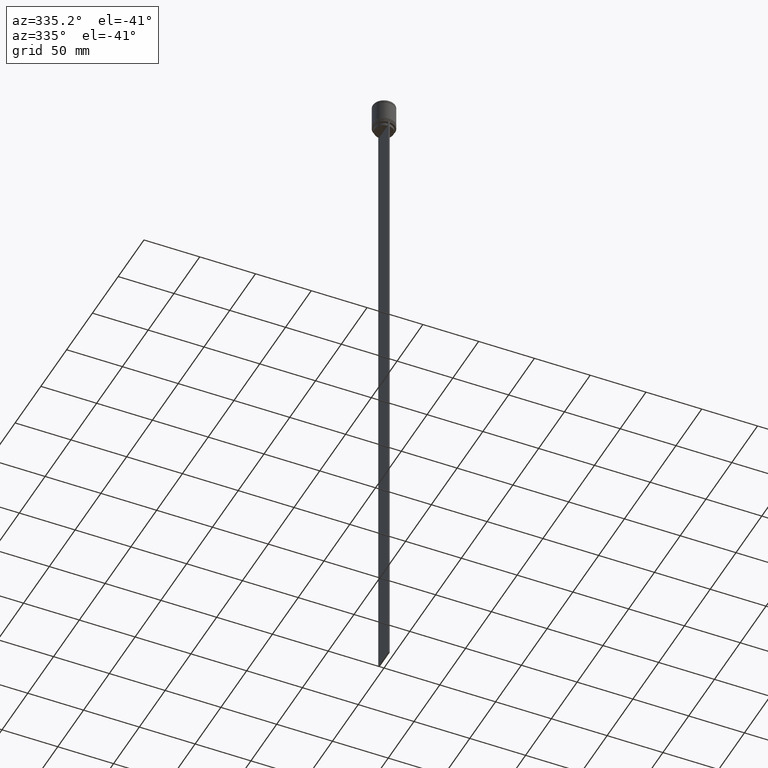
[diagram: clean part render]
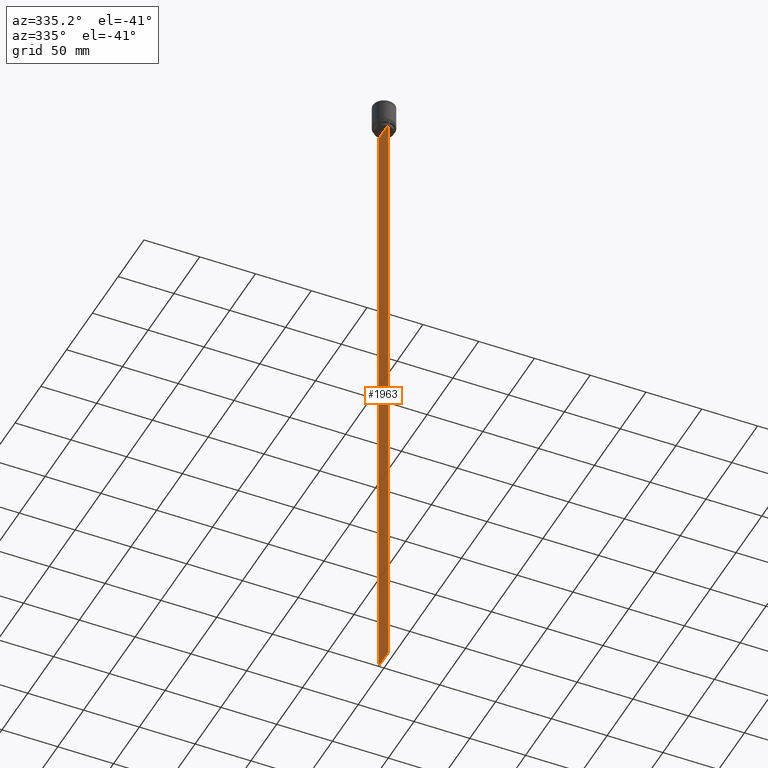
[diagram: same view with one face highlighted and labeled with its STEP entity id]
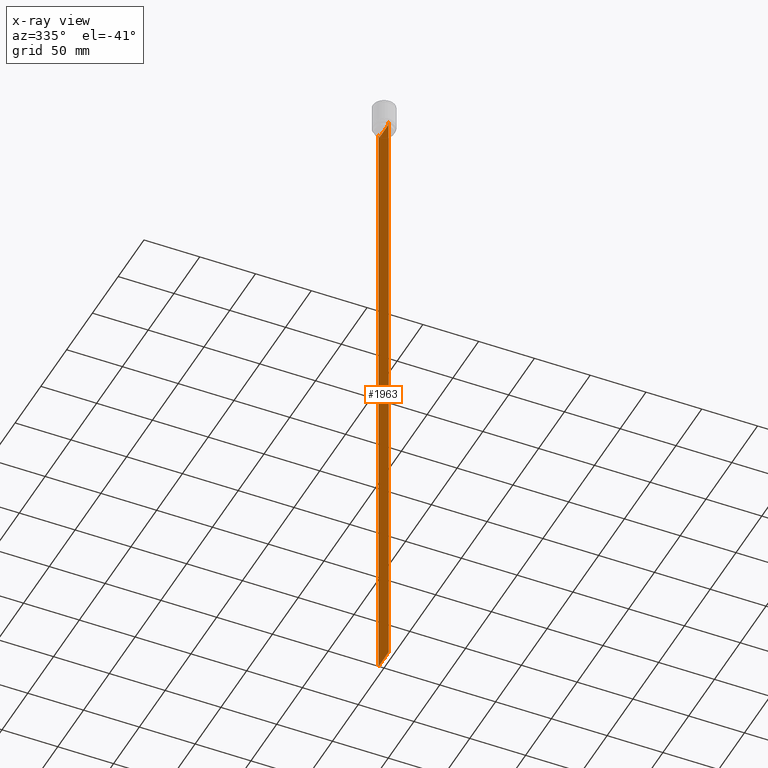
[diagram: x-ray of the same camera — body ghosted, the highlighted face saturated]
A machine part, auxiliary view. The second image highlights one B-rep face of the part: STEP entity #1963.
The next image is the same camera in x-ray: the body ghosted, the highlighted face saturated — about 0% of this face is hidden behind the body in this view.
In plain terms, the highlighted planar face has unit normal (-1, 0, 0).
Its self-contained STEP definition (entity closure, byte-faithful):
#5 = LINE ( 'NONE', #299, #1653 ) ;
#17 = ORIENTED_EDGE ( 'NONE', *, *, #916, .F. ) ;
#23 = VERTEX_POINT ( 'NONE', #1791 ) ;
#78 = VERTEX_POINT ( 'NONE', #1953 ) ;
#88 = LINE ( 'NONE', #746, #1589 ) ;
#91 = ORIENTED_EDGE ( 'NONE', *, *, #140, .F. ) ;
#95 = ORIENTED_EDGE ( 'NONE', *, *, #890, .F. ) ;
#119 = DIRECTION ( 'NONE',  ( 0.000000000000000000, -1.000000000000000000, 0.000000000000000000 ) ) ;
#134 = VECTOR ( 'NONE', #1723, 1000.000000000000000 ) ;
#138 = VERTEX_POINT ( 'NONE', #1203 ) ;
#140 = EDGE_CURVE ( 'NONE', #138, #23, #2009, .T. ) ;
#183 = CARTESIAN_POINT ( 'NONE',  ( -0.5000000000000000000, 8.885943956609226646, -22.50000000000000000 ) ) ;
#217 = CARTESIAN_POINT ( 'NONE',  ( -0.5000000000000000000, -10.00000000000000178, -594.4999999999998863 ) ) ;
#242 = DIRECTION ( 'NONE',  ( 0.000000000000000000, 1.000000000000000000, 0.000000000000000000 ) ) ;
#299 = CARTESIAN_POINT ( 'NONE',  ( -0.5000000000000000000, 8.385105843100610912, 0.000000000000000000 ) ) ;
#310 = AXIS2_PLACEMENT_3D ( 'NONE', #625, #1587, #324 ) ;
#324 = DIRECTION ( 'NONE',  ( 0.000000000000000000, 0.000000000000000000, 1.000000000000000000 ) ) ;
#339 = DIRECTION ( 'NONE',  ( 0.000000000000000000, -1.000000000000000000, 0.000000000000000000 ) ) ;
#356 = VERTEX_POINT ( 'NONE', #1472 ) ;
#403 = VECTOR ( 'NONE', #1654, 1000.000000000000000 ) ;
#411 = VERTEX_POINT ( 'NONE', #1115 ) ;
#430 = ORIENTED_EDGE ( 'NONE', *, *, #769, .F. ) ;
#477 = VECTOR ( 'NONE', #242, 1000.000000000000000 ) ;
#486 = DIRECTION ( 'NONE',  ( 0.000000000000000000, 0.000000000000000000, -1.000000000000000000 ) ) ;
#495 = CARTESIAN_POINT ( 'NONE',  ( -0.5000000000000000000, 8.552060201981374732, -22.83334167021640582 ) ) ;
#544 = ORIENTED_EDGE ( 'NONE', *, *, #1762, .F. ) ;
#613 = CARTESIAN_POINT ( 'NONE',  ( -0.5000000000000000000, -10.00000000000000178, -22.50000000000000000 ) ) ;
#625 = CARTESIAN_POINT ( 'NONE',  ( -0.5000000000000000000, -10.00000000000000178, -2.475015605499213844 ) ) ;
#627 = ORIENTED_EDGE ( 'NONE', *, *, #1156, .T. ) ;
#636 = VECTOR ( 'NONE', #1756, 1000.000000000000000 ) ;
#728 = CARTESIAN_POINT ( 'NONE',  ( -0.5000000000000000000, -10.00000000000000178, -22.50000000000000000 ) ) ;
#746 = CARTESIAN_POINT ( 'NONE',  ( -0.5000000000000000000, -10.00000000000000178, -2.475015605499213844 ) ) ;
#769 = EDGE_CURVE ( 'NONE', #411, #779, #1319, .T. ) ;
#779 = VERTEX_POINT ( 'NONE', #2077 ) ;
#793 = CARTESIAN_POINT ( 'NONE',  ( -0.5000000000000000000, 8.385105843100610912, -25.50000000000000000 ) ) ;
#803 = CARTESIAN_POINT ( 'NONE',  ( -0.5000000000000000000, 8.385105843100610912, -23.00000000000000000 ) ) ;
#890 = EDGE_CURVE ( 'NONE', #1395, #78, #1157, .T. ) ;
#899 = LINE ( 'NONE', #1074, #134 ) ;
#916 = EDGE_CURVE ( 'NONE', #1709, #411, #1366, .T. ) ;
#919 = ORIENTED_EDGE ( 'NONE', *, *, #1840, .F. ) ;
#920 = LINE ( 'NONE', #613, #1170 ) ;
#927 = DIRECTION ( 'NONE',  ( 0.000000000000000000, 0.000000000000000000, -1.000000000000000000 ) ) ;
#936 = CARTESIAN_POINT ( 'NONE',  ( -0.5000000000000000000, -8.385105843100610912, -23.00000000000000000 ) ) ;
#945 = CARTESIAN_POINT ( 'NONE',  ( -0.5000000000000000000, -8.552060194457768105, -22.83334167772666845 ) ) ;
#956 = CARTESIAN_POINT ( 'NONE',  ( -0.5000000000000000000, -8.885943956609226646, -22.50000000000000000 ) ) ;
#961 = FACE_OUTER_BOUND ( 'NONE', #1766, .T. ) ;
#965 = DIRECTION ( 'NONE',  ( 0.000000000000000000, 0.000000000000000000, -1.000000000000000000 ) ) ;
#974 = CARTESIAN_POINT ( 'NONE',  ( -0.5000000000000000000, 9.999999999999994671, -22.50000000000000000 ) ) ;
#1054 = ORIENTED_EDGE ( 'NONE', *, *, #2080, .F. ) ;
#1069 = CARTESIAN_POINT ( 'NONE',  ( -0.5000000000000000000, -8.385105843100610912, -25.50000000000000000 ) ) ;
#1074 = CARTESIAN_POINT ( 'NONE',  ( -0.5000000000000000000, -8.385105843100610912, 0.000000000000000000 ) ) ;
#1090 = EDGE_CURVE ( 'NONE', #1929, #2015, #899, .T. ) ;
#1115 = CARTESIAN_POINT ( 'NONE',  ( -0.5000000000000000000, 8.885943956609226646, -22.50000000000000000 ) ) ;
#1137 = VERTEX_POINT ( 'NONE', #793 ) ;
#1148 = ORIENTED_EDGE ( 'NONE', *, *, #1560, .F. ) ;
#1156 = EDGE_CURVE ( 'NONE', #1695, #78, #1750, .T. ) ;
#1157 = LINE ( 'NONE', #1845, #477 ) ;
#1170 = VECTOR ( 'NONE', #1415, 1000.000000000000000 ) ;
#1181 = B_SPLINE_CURVE_WITH_KNOTS ( 'NONE', 3,
 ( #936, #945, #1293, #956 ),
 .UNSPECIFIED., .F., .F.,
 ( 4, 4 ),
 ( 0.03898465126933125385, 0.03969388910599652709 ),
 .UNSPECIFIED. ) ;
#1203 = CARTESIAN_POINT ( 'NONE',  ( -0.5000000000000000000, -8.885943956609226646, -22.50000000000000000 ) ) ;
#1293 = CARTESIAN_POINT ( 'NONE',  ( -0.5000000000000000000, -8.719005764482783860, -22.66667454151159689 ) ) ;
#1319 = B_SPLINE_CURVE_WITH_KNOTS ( 'NONE', 3,
 ( #183, #1631, #495, #803 ),
 .UNSPECIFIED., .F., .F.,
 ( 4, 4 ),
 ( 0.01511546479386905242, 0.01582316445439076874 ),
 .UNSPECIFIED. ) ;
#1324 = ORIENTED_EDGE ( 'NONE', *, *, #1458, .F. ) ;
#1366 = LINE ( 'NONE', #1837, #403 ) ;
#1395 = VERTEX_POINT ( 'NONE', #217 ) ;
#1414 = CARTESIAN_POINT ( 'NONE',  ( -0.5000000000000000000, -8.385105843100610912, -23.00000000000000000 ) ) ;
#1415 = DIRECTION ( 'NONE',  ( 0.000000000000000000, -1.000000000000000000, 0.000000000000000000 ) ) ;
#1458 = EDGE_CURVE ( 'NONE', #1695, #1709, #920, .T. ) ;
#1472 = CARTESIAN_POINT ( 'NONE',  ( -0.5000000000000000000, -10.00000000000000178, -22.50000000000000000 ) ) ;
#1505 = LINE ( 'NONE', #1513, #2038 ) ;
#1513 = CARTESIAN_POINT ( 'NONE',  ( -0.5000000000000000000, 8.400000000000000355, -25.50000000000000000 ) ) ;
#1559 = VECTOR ( 'NONE', #119, 1000.000000000000000 ) ;
#1560 = EDGE_CURVE ( 'NONE', #2015, #138, #1181, .T. ) ;
#1573 = ORIENTED_EDGE ( 'NONE', *, *, #1090, .F. ) ;
#1581 = EDGE_CURVE ( 'NONE', #779, #1137, #5, .T. ) ;
#1587 = DIRECTION ( 'NONE',  ( -1.000000000000000000, 0.000000000000000000, 0.000000000000000000 ) ) ;
#1589 = VECTOR ( 'NONE', #927, 1000.000000000000000 ) ;
#1618 = CARTESIAN_POINT ( 'NONE',  ( -0.5000000000000000000, 9.999999999999998224, -2.475015605499213844 ) ) ;
#1631 = CARTESIAN_POINT ( 'NONE',  ( -0.5000000000000000000, 8.719005771582342135, -22.66667453442325098 ) ) ;
#1653 = VECTOR ( 'NONE', #486, 1000.000000000000000 ) ;
#1654 = DIRECTION ( 'NONE',  ( 0.000000000000000000, -1.000000000000000000, 0.000000000000000000 ) ) ;
#1672 = CARTESIAN_POINT ( 'NONE',  ( -0.5000000000000000000, 9.887365675446622149, -22.50000000000000000 ) ) ;
#1695 = VERTEX_POINT ( 'NONE', #974 ) ;
#1709 = VERTEX_POINT ( 'NONE', #1672 ) ;
#1723 = DIRECTION ( 'NONE',  ( -0.000000000000000000, -0.000000000000000000, 1.000000000000000000 ) ) ;
#1750 = LINE ( 'NONE', #1618, #2061 ) ;
#1756 = DIRECTION ( 'NONE',  ( 0.000000000000000000, -1.000000000000000000, 0.000000000000000000 ) ) ;
#1762 = EDGE_CURVE ( 'NONE', #1137, #1929, #1505, .T. ) ;
#1766 = EDGE_LOOP ( 'NONE', ( #430, #17, #1324, #627, #95, #919, #1054, #91, #1148, #1573, #544, #1777 ) ) ;
#1775 = LINE ( 'NONE', #1918, #1559 ) ;
#1777 = ORIENTED_EDGE ( 'NONE', *, *, #1581, .F. ) ;
#1791 = CARTESIAN_POINT ( 'NONE',  ( -0.5000000000000000000, -9.887365675446622149, -22.50000000000000000 ) ) ;
#1837 = CARTESIAN_POINT ( 'NONE',  ( -0.5000000000000000000, -10.00000000000000178, -22.50000000000000000 ) ) ;
#1840 = EDGE_CURVE ( 'NONE', #356, #1395, #88, .T. ) ;
#1845 = CARTESIAN_POINT ( 'NONE',  ( -0.5000000000000000000, -10.00000000000000178, -594.4999999999998863 ) ) ;
#1918 = CARTESIAN_POINT ( 'NONE',  ( -0.5000000000000000000, -10.00000000000000178, -22.50000000000000000 ) ) ;
#1929 = VERTEX_POINT ( 'NONE', #1069 ) ;
#1953 = CARTESIAN_POINT ( 'NONE',  ( -0.5000000000000000000, 9.999999999999998224, -594.4999999999998863 ) ) ;
#1963 = ADVANCED_FACE ( 'NONE', ( #961 ), #2073, .T. ) ;
#2009 = LINE ( 'NONE', #728, #636 ) ;
#2015 = VERTEX_POINT ( 'NONE', #1414 ) ;
#2038 = VECTOR ( 'NONE', #339, 1000.000000000000000 ) ;
#2061 = VECTOR ( 'NONE', #965, 1000.000000000000000 ) ;
#2073 = PLANE ( 'NONE',  #310 ) ;
#2077 = CARTESIAN_POINT ( 'NONE',  ( -0.5000000000000000000, 8.385105843100610912, -23.00000000000000000 ) ) ;
#2080 = EDGE_CURVE ( 'NONE', #23, #356, #1775, .T. ) ;